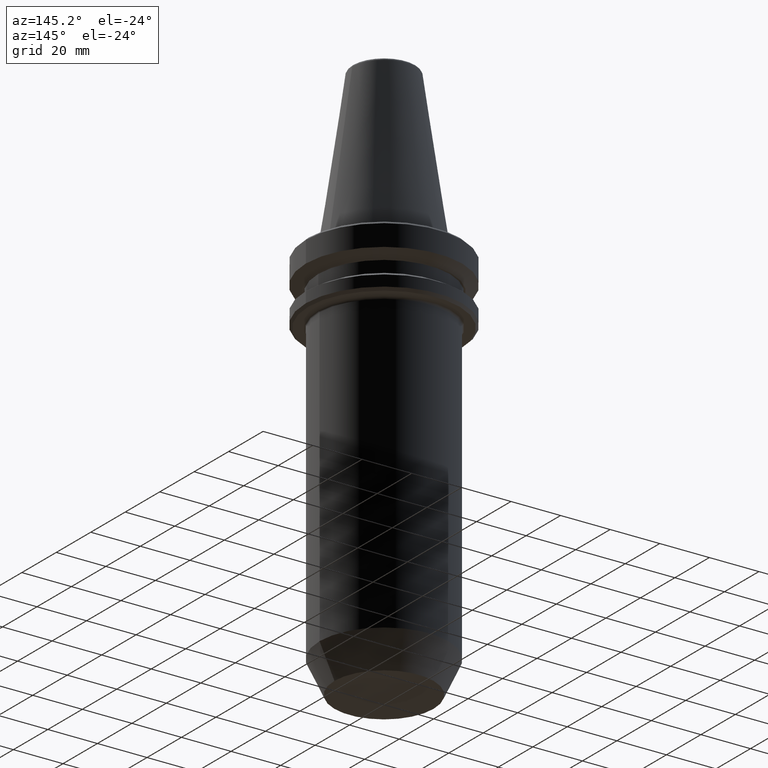
[diagram: clean part render]
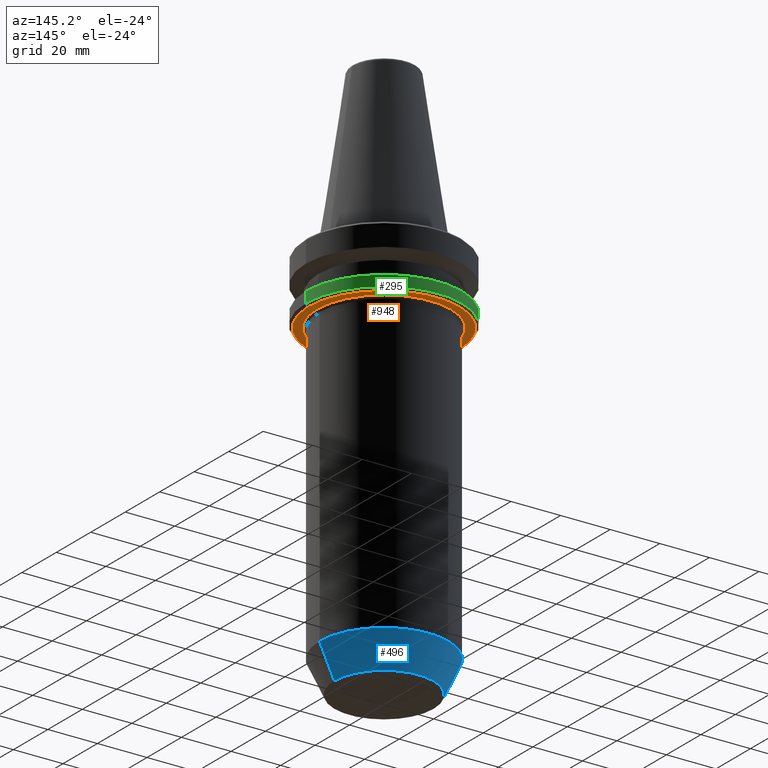
[diagram: same view with three faces highlighted in distinct colors, each labeled with its STEP entity id]
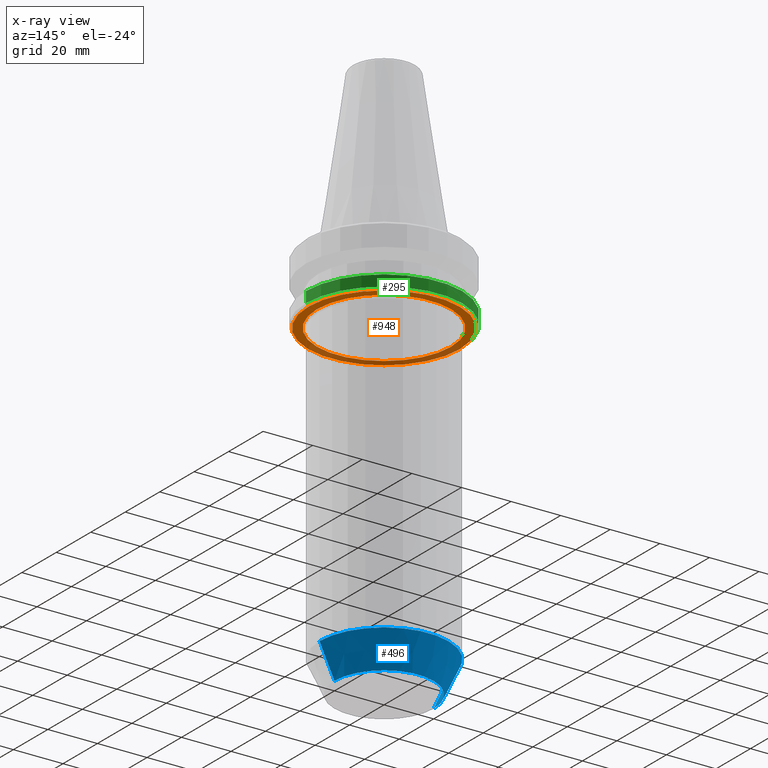
[diagram: x-ray of the same camera — body ghosted, the three highlighted faces saturated]
A machine part, auxiliary view with three faces highlighted in distinct colors.
The next image is the same camera in x-ray (body ghosted, the three faces saturated) — at least one of them is partly hidden behind the body in this view.
Their STEP definitions:

[orange] entity #948 — the highlighted planar face has unit normal (0, -0, 1).
#3 = EDGE_LOOP ( 'NONE', ( #566, #569 ) ) ;
#15 = DIRECTION ( 'NONE',  ( 1.000000000000000000, 0.0000000000000000000, 0.0000000000000000000 ) ) ;
#71 = CARTESIAN_POINT ( 'NONE',  ( 30.49999999999997200, 0.0000000000000000000, -26.31128678844368800 ) ) ;
#108 = DIRECTION ( 'NONE',  ( 1.000000000000000000, 0.0000000000000000000, 0.0000000000000000000 ) ) ;
#113 = EDGE_CURVE ( 'NONE', #329, #1009, #754, .T. ) ;
#119 = FACE_OUTER_BOUND ( 'NONE', #677, .T. ) ;
#129 = FACE_BOUND ( 'NONE', #3, .T. ) ;
#131 = EDGE_CURVE ( 'NONE', #1009, #329, #771, .T. ) ;
#145 = DIRECTION ( 'NONE',  ( -0.0000000000000000000, -0.0000000000000000000, 1.000000000000000000 ) ) ;
#151 = CIRCLE ( 'NONE', #870, 27.00000000000000000 ) ;
#170 = ORIENTED_EDGE ( 'NONE', *, *, #113, .F. ) ;
#178 = CARTESIAN_POINT ( 'NONE',  ( 0.0000000000000000000, 0.0000000000000000000, -26.31128678844368800 ) ) ;
#226 = DIRECTION ( 'NONE',  ( 0.0000000000000000000, -0.0000000000000000000, 1.000000000000000000 ) ) ;
#256 = CARTESIAN_POINT ( 'NONE',  ( -30.49999999999997200, 3.796405077356805400E-015, -26.31128678844368800 ) ) ;
#325 = DIRECTION ( 'NONE',  ( -0.0000000000000000000, -0.0000000000000000000, 1.000000000000000000 ) ) ;
#329 = VERTEX_POINT ( 'NONE', #256 ) ;
#338 = DIRECTION ( 'NONE',  ( -0.0000000000000000000, -0.0000000000000000000, 1.000000000000000000 ) ) ;
#377 = CIRCLE ( 'NONE', #835, 27.00000000000000000 ) ;
#460 = CARTESIAN_POINT ( 'NONE',  ( 0.0000000000000000000, 0.0000000000000000000, -26.31128678844368800 ) ) ;
#464 = AXIS2_PLACEMENT_3D ( 'NONE', #583, #226, #828 ) ;
#469 = VERTEX_POINT ( 'NONE', #1053 ) ;
#524 = EDGE_CURVE ( 'NONE', #469, #741, #377, .T. ) ;
#531 = DIRECTION ( 'NONE',  ( -0.0000000000000000000, -0.0000000000000000000, 1.000000000000000000 ) ) ;
#566 = ORIENTED_EDGE ( 'NONE', *, *, #922, .T. ) ;
#569 = ORIENTED_EDGE ( 'NONE', *, *, #524, .T. ) ;
#583 = CARTESIAN_POINT ( 'NONE',  ( 0.0000000000000000000, 30.49999999999997200, -26.31128678844368800 ) ) ;
#584 = PLANE ( 'NONE',  #464 ) ;
#657 = CARTESIAN_POINT ( 'NONE',  ( 0.0000000000000000000, 0.0000000000000000000, -26.31128678844368800 ) ) ;
#677 = EDGE_LOOP ( 'NONE', ( #946, #170 ) ) ;
#741 = VERTEX_POINT ( 'NONE', #805 ) ;
#745 = DIRECTION ( 'NONE',  ( 1.000000000000000000, 0.0000000000000000000, 0.0000000000000000000 ) ) ;
#751 = AXIS2_PLACEMENT_3D ( 'NONE', #460, #325, #108 ) ;
#754 = CIRCLE ( 'NONE', #891, 30.49999999999997200 ) ;
#771 = CIRCLE ( 'NONE', #751, 30.49999999999997200 ) ;
#805 = CARTESIAN_POINT ( 'NONE',  ( 27.00000000000000000, 0.0000000000000000000, -26.31128678844368800 ) ) ;
#828 = DIRECTION ( 'NONE',  ( 1.000000000000000000, 0.0000000000000000000, 0.0000000000000000000 ) ) ;
#835 = AXIS2_PLACEMENT_3D ( 'NONE', #1002, #531, #15 ) ;
#870 = AXIS2_PLACEMENT_3D ( 'NONE', #657, #145, #745 ) ;
#891 = AXIS2_PLACEMENT_3D ( 'NONE', #178, #338, #899 ) ;
#899 = DIRECTION ( 'NONE',  ( 1.000000000000000000, 0.0000000000000000000, 0.0000000000000000000 ) ) ;
#922 = EDGE_CURVE ( 'NONE', #741, #469, #151, .T. ) ;
#946 = ORIENTED_EDGE ( 'NONE', *, *, #131, .F. ) ;
#948 = ADVANCED_FACE ( 'NONE', ( #119, #129 ), #584, .F. ) ;
#1002 = CARTESIAN_POINT ( 'NONE',  ( 0.0000000000000000000, 0.0000000000000000000, -26.31128678844368800 ) ) ;
#1009 = VERTEX_POINT ( 'NONE', #71 ) ;
#1053 = CARTESIAN_POINT ( 'NONE',  ( -27.00000000000000000, 3.306546357697854100E-015, -26.31128678844368800 ) ) ;

[blue] entity #496 — the highlighted conical surface has half-angle 25 deg.
#4 = CARTESIAN_POINT ( 'NONE',  ( -20.00000000000000000, 2.816687638038912400E-015, -159.3112867883404000 ) ) ;
#95 = CIRCLE ( 'NONE', #868, 26.00000000000000000 ) ;
#156 = DIRECTION ( 'NONE',  ( -0.0000000000000000000, -0.0000000000000000000, 1.000000000000000000 ) ) ;
#188 = DIRECTION ( 'NONE',  ( 0.4226182617406928400, 0.0000000000000000000, 0.9063077870366530500 ) ) ;
#214 = LINE ( 'NONE', #596, #423 ) ;
#227 = CARTESIAN_POINT ( 'NONE',  ( 20.00000000000000000, 0.0000000000000000000, -159.3112867883404000 ) ) ;
#255 = VECTOR ( 'NONE', #188, 1000.000000000000000 ) ;
#270 = CARTESIAN_POINT ( 'NONE',  ( 26.00000000000000000, 0.0000000000000000000, -146.4442452652828000 ) ) ;
#292 = CONICAL_SURFACE ( 'NONE', #905, 20.00000000000000000, 0.4363323129985751100 ) ;
#359 = LINE ( 'NONE', #620, #255 ) ;
#381 = FACE_OUTER_BOUND ( 'NONE', #981, .T. ) ;
#420 = DIRECTION ( 'NONE',  ( -0.0000000000000000000, -0.0000000000000000000, 1.000000000000000000 ) ) ;
#422 = EDGE_CURVE ( 'NONE', #466, #1048, #651, .T. ) ;
#423 = VECTOR ( 'NONE', #1038, 1000.000000000000000 ) ;
#429 = EDGE_CURVE ( 'NONE', #1048, #912, #214, .T. ) ;
#458 = ORIENTED_EDGE ( 'NONE', *, *, #608, .F. ) ;
#466 = VERTEX_POINT ( 'NONE', #227 ) ;
#470 = DIRECTION ( 'NONE',  ( 1.000000000000000000, 0.0000000000000000000, 0.0000000000000000000 ) ) ;
#496 = ADVANCED_FACE ( 'NONE', ( #381 ), #292, .T. ) ;
#507 = AXIS2_PLACEMENT_3D ( 'NONE', #676, #979, #582 ) ;
#582 = DIRECTION ( 'NONE',  ( 1.000000000000000000, 0.0000000000000000000, 0.0000000000000000000 ) ) ;
#596 = CARTESIAN_POINT ( 'NONE',  ( -20.00000000000000000, 2.449293598294706500E-015, -159.3112867883404000 ) ) ;
#608 = EDGE_CURVE ( 'NONE', #466, #636, #359, .T. ) ;
#620 = CARTESIAN_POINT ( 'NONE',  ( 20.00000000000000000, 0.0000000000000000000, -159.3112867883404000 ) ) ;
#636 = VERTEX_POINT ( 'NONE', #270 ) ;
#651 = CIRCLE ( 'NONE', #507, 20.00000000000000000 ) ;
#653 = CARTESIAN_POINT ( 'NONE',  ( 0.0000000000000000000, 0.0000000000000000000, -159.3112867883404000 ) ) ;
#676 = CARTESIAN_POINT ( 'NONE',  ( 0.0000000000000000000, 0.0000000000000000000, -159.3112867883404000 ) ) ;
#842 = ORIENTED_EDGE ( 'NONE', *, *, #422, .T. ) ;
#868 = AXIS2_PLACEMENT_3D ( 'NONE', #917, #420, #992 ) ;
#896 = ORIENTED_EDGE ( 'NONE', *, *, #1040, .F. ) ;
#905 = AXIS2_PLACEMENT_3D ( 'NONE', #653, #156, #470 ) ;
#912 = VERTEX_POINT ( 'NONE', #1046 ) ;
#917 = CARTESIAN_POINT ( 'NONE',  ( 0.0000000000000000000, 0.0000000000000000000, -146.4442452652828000 ) ) ;
#979 = DIRECTION ( 'NONE',  ( -0.0000000000000000000, -0.0000000000000000000, 1.000000000000000000 ) ) ;
#981 = EDGE_LOOP ( 'NONE', ( #842, #1027, #896, #458 ) ) ;
#992 = DIRECTION ( 'NONE',  ( 1.000000000000000000, 0.0000000000000000000, 0.0000000000000000000 ) ) ;
#1027 = ORIENTED_EDGE ( 'NONE', *, *, #429, .T. ) ;
#1038 = DIRECTION ( 'NONE',  ( -0.4226182617406928400, 5.175581015019578000E-017, 0.9063077870366530500 ) ) ;
#1040 = EDGE_CURVE ( 'NONE', #636, #912, #95, .T. ) ;
#1046 = CARTESIAN_POINT ( 'NONE',  ( -26.00000000000000000, 3.184081677783118200E-015, -146.4442452652828000 ) ) ;
#1048 = VERTEX_POINT ( 'NONE', #4 ) ;

[green] entity #295 — the highlighted cylindrical surface (partial cylindrical patch) has radius 31.5 mm, axis along (-0, -0, 1).
#11 = CARTESIAN_POINT ( 'NONE',  ( 0.0000000000000000000, 0.0000000000000000000, 82.74845858742440900 ) ) ;
#12 = DIRECTION ( 'NONE',  ( -0.0000000000000000000, -0.0000000000000000000, 1.000000000000000000 ) ) ;
#78 = CARTESIAN_POINT ( 'NONE',  ( 0.0000000000000000000, 0.0000000000000000000, -20.91142879476059900 ) ) ;
#80 = CARTESIAN_POINT ( 'NONE',  ( -31.50000000000019500, 3.857637417314186400E-015, 82.74845858742440900 ) ) ;
#128 = EDGE_CURVE ( 'NONE', #1039, #585, #752, .T. ) ;
#157 = CARTESIAN_POINT ( 'NONE',  ( 31.50000000000019500, 0.0000000000000000000, -20.91142879476059900 ) ) ;
#163 = CYLINDRICAL_SURFACE ( 'NONE', #825, 31.50000000000019500 ) ;
#171 = DIRECTION ( 'NONE',  ( -0.0000000000000000000, -0.0000000000000000000, 1.000000000000000000 ) ) ;
#187 = CARTESIAN_POINT ( 'NONE',  ( -31.50000000000019500, 3.857637417314186400E-015, -20.91142879476059900 ) ) ;
#201 = LINE ( 'NONE', #722, #211 ) ;
#211 = VECTOR ( 'NONE', #810, 1000.000000000000000 ) ;
#254 = VECTOR ( 'NONE', #12, 1000.000000000000000 ) ;
#275 = CIRCLE ( 'NONE', #862, 31.50000000000019500 ) ;
#276 = ORIENTED_EDGE ( 'NONE', *, *, #522, .T. ) ;
#279 = ORIENTED_EDGE ( 'NONE', *, *, #518, .T. ) ;
#290 = LINE ( 'NONE', #80, #254 ) ;
#295 = ADVANCED_FACE ( 'NONE', ( #785 ), #163, .T. ) ;
#455 = VERTEX_POINT ( 'NONE', #685 ) ;
#462 = EDGE_LOOP ( 'NONE', ( #279, #276, #854, #515 ) ) ;
#515 = ORIENTED_EDGE ( 'NONE', *, *, #761, .F. ) ;
#518 = EDGE_CURVE ( 'NONE', #996, #455, #275, .T. ) ;
#522 = EDGE_CURVE ( 'NONE', #455, #585, #290, .T. ) ;
#585 = VERTEX_POINT ( 'NONE', #187 ) ;
#685 = CARTESIAN_POINT ( 'NONE',  ( -31.50000000000019500, 3.857637417314186400E-015, -25.31128678844346400 ) ) ;
#686 = CARTESIAN_POINT ( 'NONE',  ( 0.0000000000000000000, 0.0000000000000000000, -25.31128678844346400 ) ) ;
#722 = CARTESIAN_POINT ( 'NONE',  ( 31.50000000000019500, 0.0000000000000000000, 82.74845858742440900 ) ) ;
#752 = CIRCLE ( 'NONE', #759, 31.50000000000019500 ) ;
#759 = AXIS2_PLACEMENT_3D ( 'NONE', #78, #1004, #813 ) ;
#761 = EDGE_CURVE ( 'NONE', #996, #1039, #201, .T. ) ;
#769 = DIRECTION ( 'NONE',  ( 1.000000000000000000, 0.0000000000000000000, 0.0000000000000000000 ) ) ;
#785 = FACE_OUTER_BOUND ( 'NONE', #462, .T. ) ;
#810 = DIRECTION ( 'NONE',  ( -0.0000000000000000000, -0.0000000000000000000, 1.000000000000000000 ) ) ;
#813 = DIRECTION ( 'NONE',  ( 1.000000000000000000, 0.0000000000000000000, 0.0000000000000000000 ) ) ;
#825 = AXIS2_PLACEMENT_3D ( 'NONE', #11, #830, #988 ) ;
#830 = DIRECTION ( 'NONE',  ( -0.0000000000000000000, -0.0000000000000000000, 1.000000000000000000 ) ) ;
#854 = ORIENTED_EDGE ( 'NONE', *, *, #128, .F. ) ;
#862 = AXIS2_PLACEMENT_3D ( 'NONE', #686, #171, #769 ) ;
#904 = CARTESIAN_POINT ( 'NONE',  ( 31.50000000000019500, 0.0000000000000000000, -25.31128678844346400 ) ) ;
#988 = DIRECTION ( 'NONE',  ( 1.000000000000000000, 0.0000000000000000000, 0.0000000000000000000 ) ) ;
#996 = VERTEX_POINT ( 'NONE', #904 ) ;
#1004 = DIRECTION ( 'NONE',  ( -0.0000000000000000000, -0.0000000000000000000, 1.000000000000000000 ) ) ;
#1039 = VERTEX_POINT ( 'NONE', #157 ) ;